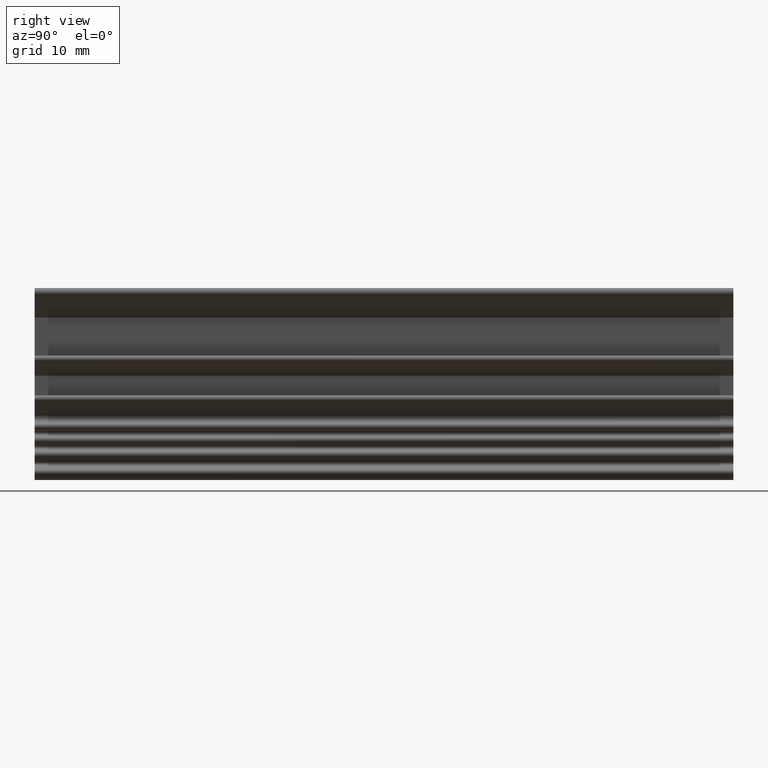
[diagram: clean part render]
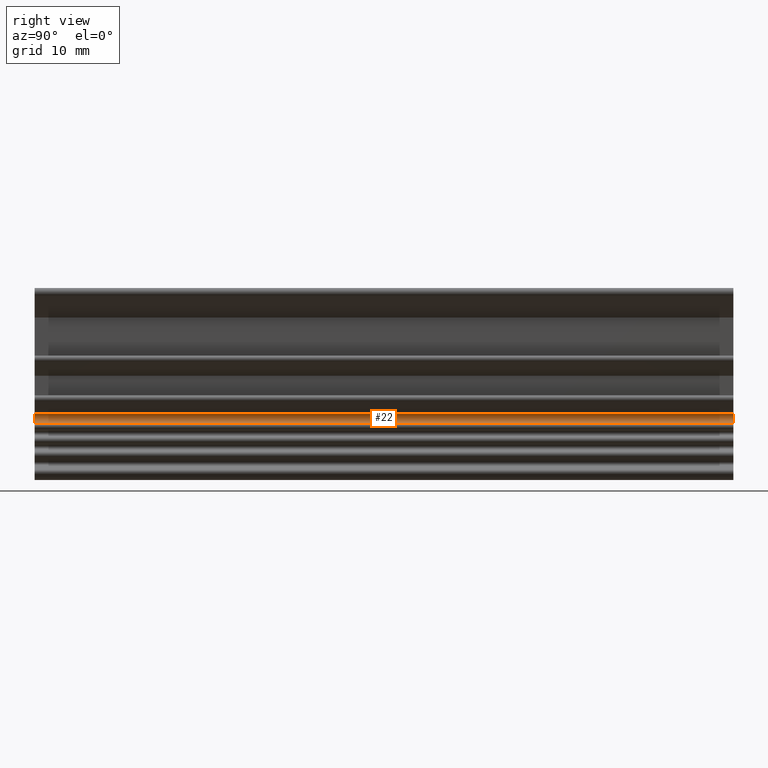
[diagram: same view with one face highlighted and labeled with its STEP entity id]
A machine part, right view. The second image highlights one B-rep face of the part: STEP entity #22.
In plain terms, the highlighted cylindrical surface (edge-blend (fillet) strip) has radius 0.6 mm, axis along (0, 1, 0).
Its self-contained STEP definition (entity closure, byte-faithful):
#22 = ADVANCED_FACE ( 'NONE', ( #2094 ), #2089, .F. ) ;
#58 = AXIS2_PLACEMENT_3D ( 'NONE', #1460, #1462, #1463 ) ;
#63 = AXIS2_PLACEMENT_3D ( 'NONE', #1448, #1439, #1465 ) ;
#120 = AXIS2_PLACEMENT_3D ( 'NONE', #1029, #1042, #1062 ) ;
#459 = EDGE_LOOP ( 'NONE', ( #570, #571, #572, #574 ) ) ;
#570 = ORIENTED_EDGE ( 'NONE', *, *, #663, .F. ) ;
#571 = ORIENTED_EDGE ( 'NONE', *, *, #701, .F. ) ;
#572 = ORIENTED_EDGE ( 'NONE', *, *, #753, .T. ) ;
#574 = ORIENTED_EDGE ( 'NONE', *, *, #707, .F. ) ;
#663 = EDGE_CURVE ( 'NONE', #1266, #1011, #1914, .T. ) ;
#701 = EDGE_CURVE ( 'NONE', #987, #1266, #1727, .T. ) ;
#707 = EDGE_CURVE ( 'NONE', #1011, #1274, #1735, .T. ) ;
#753 = EDGE_CURVE ( 'NONE', #987, #1274, #1770, .T. ) ;
#987 = VERTEX_POINT ( 'NONE', #1565 ) ;
#1011 = VERTEX_POINT ( 'NONE', #1555 ) ;
#1029 = CARTESIAN_POINT ( 'NONE',  ( 0.002494993352341160200, 80.00000000000000000, 7.128220043805869800 ) ) ;
#1042 = DIRECTION ( 'NONE',  ( 0.0000000000000000000, 1.000000000000000000, 0.0000000000000000000 ) ) ;
#1062 = DIRECTION ( 'NONE',  ( 0.0000000000000000000, 0.0000000000000000000, 1.000000000000000000 ) ) ;
#1266 = VERTEX_POINT ( 'NONE', #1522 ) ;
#1274 = VERTEX_POINT ( 'NONE', #1514 ) ;
#1405 = DIRECTION ( 'NONE',  ( -0.0000000000000000000, -1.000000000000000000, -0.0000000000000000000 ) ) ;
#1421 = CARTESIAN_POINT ( 'NONE',  ( -0.07709314818097751100, 80.00000000000000000, 6.533522029913715600 ) ) ;
#1439 = DIRECTION ( 'NONE',  ( 0.0000000000000000000, 1.000000000000000000, 0.0000000000000000000 ) ) ;
#1448 = CARTESIAN_POINT ( 'NONE',  ( 0.002494993352341160200, 0.0000000000000000000, 7.128220043805869800 ) ) ;
#1460 = CARTESIAN_POINT ( 'NONE',  ( 0.002494993352341160200, 80.00000000000000000, 7.128220043805869800 ) ) ;
#1462 = DIRECTION ( 'NONE',  ( -0.0000000000000000000, -1.000000000000000000, -0.0000000000000000000 ) ) ;
#1463 = DIRECTION ( 'NONE',  ( -8.879728730382584200E-016, 0.0000000000000000000, 1.000000000000000000 ) ) ;
#1465 = DIRECTION ( 'NONE',  ( 0.0000000000000000000, 0.0000000000000000000, 1.000000000000000000 ) ) ;
#1514 = CARTESIAN_POINT ( 'NONE',  ( -0.4241993430486916100, -3.469446951953614200E-015, 7.550039843344924500 ) ) ;
#1522 = CARTESIAN_POINT ( 'NONE',  ( -0.07709314816098196400, 80.00000000000000000, 6.533522029911036800 ) ) ;
#1555 = CARTESIAN_POINT ( 'NONE',  ( -0.07709314816098196400, 0.0000000000000000000, 6.533522029911036800 ) ) ;
#1565 = CARTESIAN_POINT ( 'NONE',  ( -0.4241993430486916100, 80.00000000000000000, 7.550039843344924500 ) ) ;
#1578 = DIRECTION ( 'NONE',  ( -0.0000000000000000000, -1.000000000000000000, 0.0000000000000000000 ) ) ;
#1579 = CARTESIAN_POINT ( 'NONE',  ( -0.4241993430482797800, 80.00000000000000000, 7.550039843345337500 ) ) ;
#1727 = CIRCLE ( 'NONE', #58, 0.5999999999999998700 ) ;
#1735 = CIRCLE ( 'NONE', #63, 0.5999999999999998700 ) ;
#1770 = LINE ( 'NONE', #1579, #1771 ) ;
#1771 = VECTOR ( 'NONE', #1578, 1000.000000000000000 ) ;
#1876 = VECTOR ( 'NONE', #1405, 1000.000000000000000 ) ;
#1914 = LINE ( 'NONE', #1421, #1876 ) ;
#2089 = CYLINDRICAL_SURFACE ( 'NONE', #120, 0.5999999999999998700 ) ;
#2094 = FACE_OUTER_BOUND ( 'NONE', #459, .T. ) ;